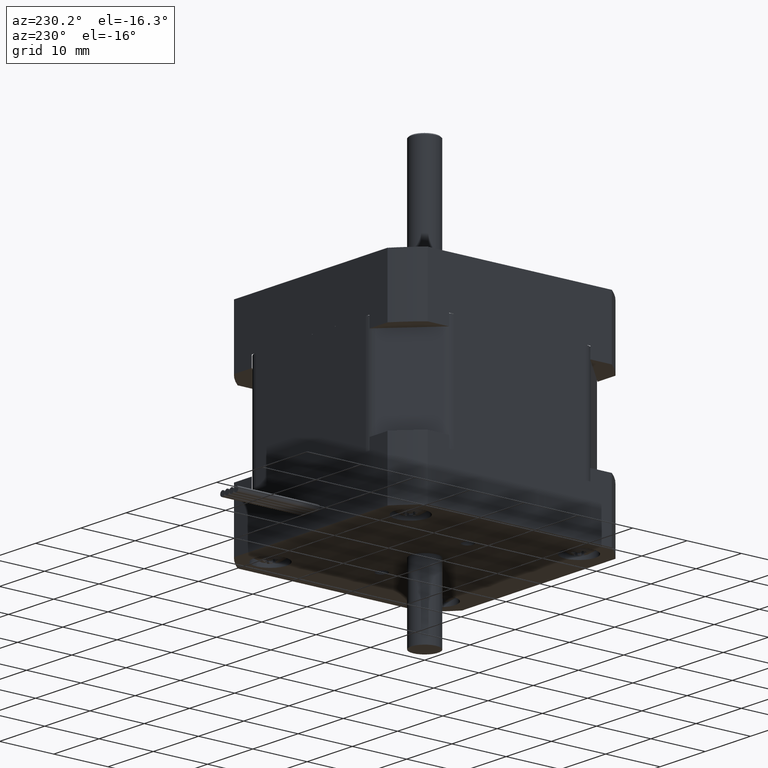
[diagram: clean part render]
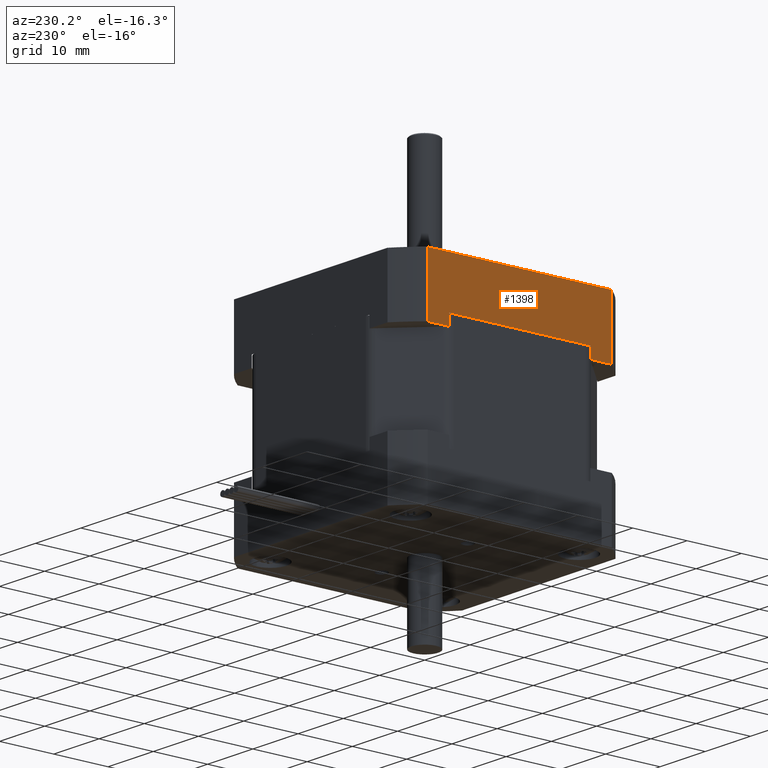
[diagram: same view with one face highlighted and labeled with its STEP entity id]
A machine part, auxiliary view. The second image highlights one B-rep face of the part: STEP entity #1398.
In plain terms, the highlighted planar face has unit normal (-1, 0, 0).
Its self-contained STEP definition (entity closure, byte-faithful):
#743=CARTESIAN_POINT('',(-21.000000000000011,12.999999999999996,13.250000000000009));
#744=VERTEX_POINT('',#743);
#751=CARTESIAN_POINT('',(-21.000000000000011,16.970562748477139,13.250000000000009));
#752=VERTEX_POINT('',#751);
#753=CARTESIAN_POINT('',(-21.000000000000011,16.970562748477139,13.250000000000009));
#754=DIRECTION('',(0.0,-1.0,0.0));
#755=VECTOR('',#754,3.970562748477144);
#756=LINE('',#753,#755);
#757=EDGE_CURVE('',#752,#744,#756,.T.);
#782=CARTESIAN_POINT('',(-21.000000000000014,-12.999999999999982,13.250000000000009));
#783=VERTEX_POINT('',#782);
#800=CARTESIAN_POINT('',(-21.000000000000011,-16.970562748477136,13.250000000000009));
#801=VERTEX_POINT('',#800);
#809=CARTESIAN_POINT('',(-21.000000000000014,-12.999999999999982,13.250000000000009));
#810=DIRECTION('',(0.0,-1.0,0.0));
#811=VECTOR('',#810,3.970562748477153);
#812=LINE('',#809,#811);
#813=EDGE_CURVE('',#783,#801,#812,.T.);
#938=CARTESIAN_POINT('',(-21.000000000000011,16.970562748477139,24.250000000000007));
#939=VERTEX_POINT('',#938);
#947=CARTESIAN_POINT('',(-21.000000000000011,-16.970562748477136,24.250000000000007));
#948=VERTEX_POINT('',#947);
#949=CARTESIAN_POINT('',(-21.000000000000011,-16.970562748477136,24.250000000000007));
#950=DIRECTION('',(0.0,1.0,0.0));
#951=VECTOR('',#950,33.941125496954278);
#952=LINE('',#949,#951);
#953=EDGE_CURVE('',#948,#939,#952,.T.);
#1348=CARTESIAN_POINT('',(-21.000000000000011,-16.970562748477136,13.250000000000009));
#1349=DIRECTION('',(0.0,0.0,1.0));
#1350=VECTOR('',#1349,10.999999999999998);
#1351=LINE('',#1348,#1350);
#1352=EDGE_CURVE('',#801,#948,#1351,.T.);
#1359=CARTESIAN_POINT('',(-21.000000000000011,-16.970562748477136,13.250000000000009));
#1360=DIRECTION('',(-1.0,0.0,0.0));
#1361=DIRECTION('',(0.0,0.0,1.0));
#1362=AXIS2_PLACEMENT_3D('',#1359,#1360,#1361);
#1363=PLANE('',#1362);
#1364=CARTESIAN_POINT('',(-21.000000000000014,-12.999999999999982,15.250000000000007));
#1365=VERTEX_POINT('',#1364);
#1366=CARTESIAN_POINT('',(-21.000000000000014,-12.999999999999982,15.250000000000007));
#1367=DIRECTION('',(0.0,0.0,-1.0));
#1368=VECTOR('',#1367,2.0);
#1369=LINE('',#1366,#1368);
#1370=EDGE_CURVE('',#1365,#783,#1369,.T.);
#1371=ORIENTED_EDGE('',*,*,#1370,.T.);
#1372=ORIENTED_EDGE('',*,*,#813,.T.);
#1373=ORIENTED_EDGE('',*,*,#1352,.T.);
#1374=ORIENTED_EDGE('',*,*,#953,.T.);
#1375=CARTESIAN_POINT('',(-21.000000000000011,16.970562748477139,13.250000000000009));
#1376=DIRECTION('',(0.0,0.0,1.0));
#1377=VECTOR('',#1376,10.999999999999998);
#1378=LINE('',#1375,#1377);
#1379=EDGE_CURVE('',#752,#939,#1378,.T.);
#1380=ORIENTED_EDGE('',*,*,#1379,.F.);
#1381=ORIENTED_EDGE('',*,*,#757,.T.);
#1382=CARTESIAN_POINT('',(-21.000000000000011,12.999999999999996,15.250000000000007));
#1383=VERTEX_POINT('',#1382);
#1384=CARTESIAN_POINT('',(-21.000000000000011,12.999999999999996,13.250000000000009));
#1385=DIRECTION('',(0.0,0.0,1.0));
#1386=VECTOR('',#1385,2.0);
#1387=LINE('',#1384,#1386);
#1388=EDGE_CURVE('',#744,#1383,#1387,.T.);
#1389=ORIENTED_EDGE('',*,*,#1388,.T.);
#1390=CARTESIAN_POINT('',(-21.000000000000011,12.999999999999996,15.250000000000007));
#1391=DIRECTION('',(0.0,-1.0,0.0));
#1392=VECTOR('',#1391,25.999999999999979);
#1393=LINE('',#1390,#1392);
#1394=EDGE_CURVE('',#1383,#1365,#1393,.T.);
#1395=ORIENTED_EDGE('',*,*,#1394,.T.);
#1396=EDGE_LOOP('',(#1371,#1372,#1373,#1374,#1380,#1381,#1389,#1395));
#1397=FACE_OUTER_BOUND('',#1396,.T.);
#1398=ADVANCED_FACE('',(#1397),#1363,.T.);